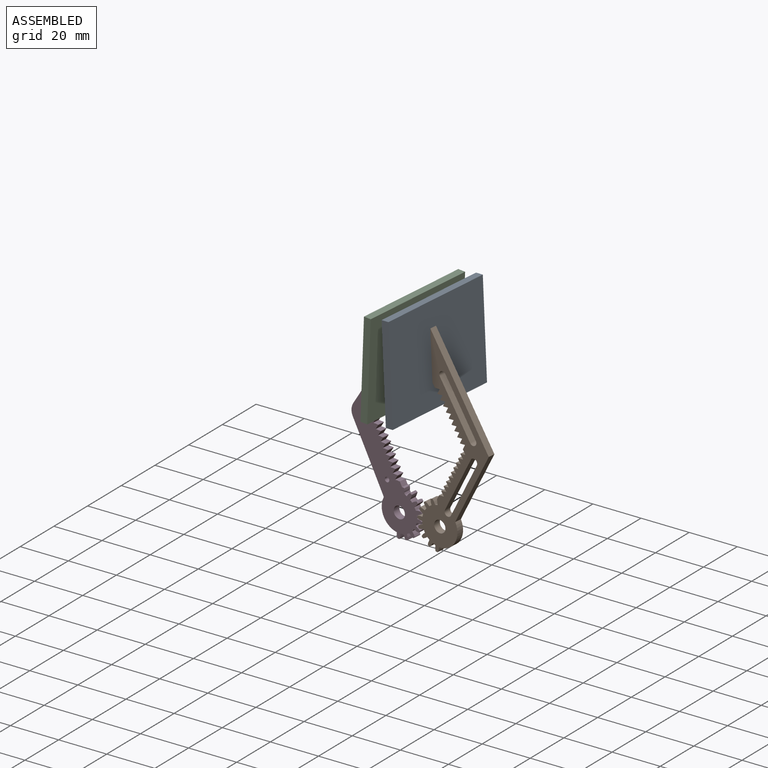
[diagram: assembled view]
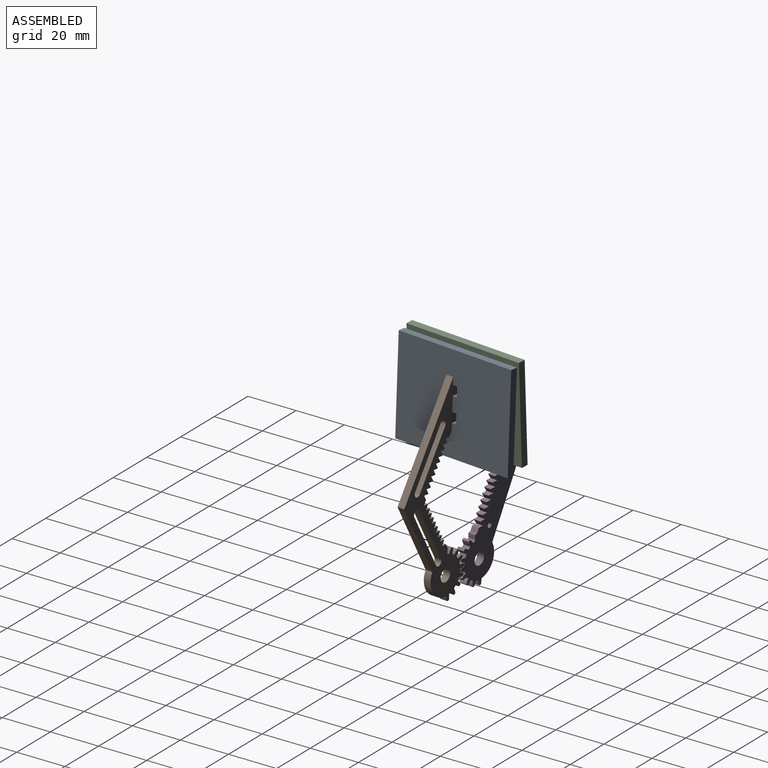
[diagram: assembled view, second angle]
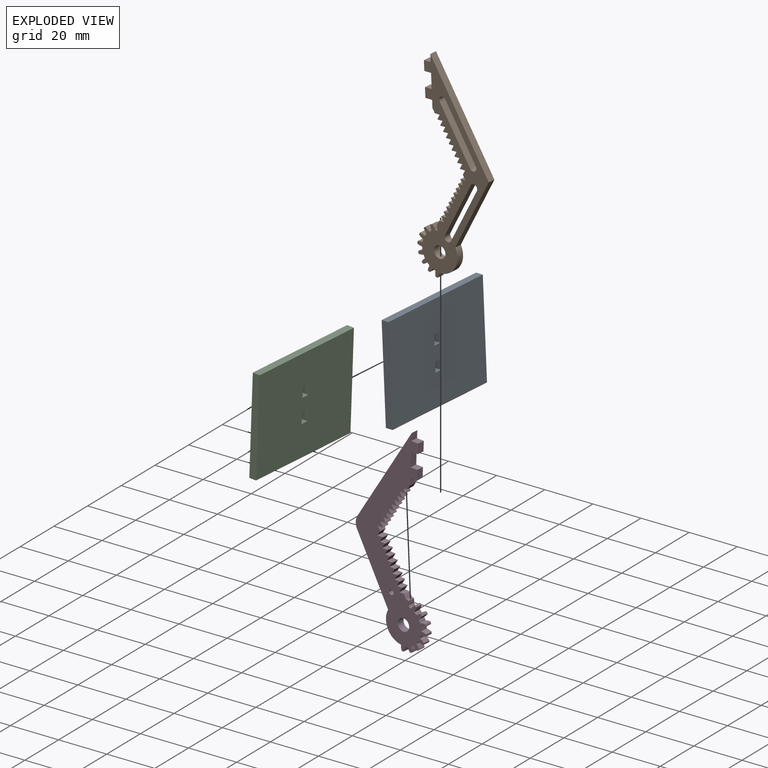
[diagram: exploded view]
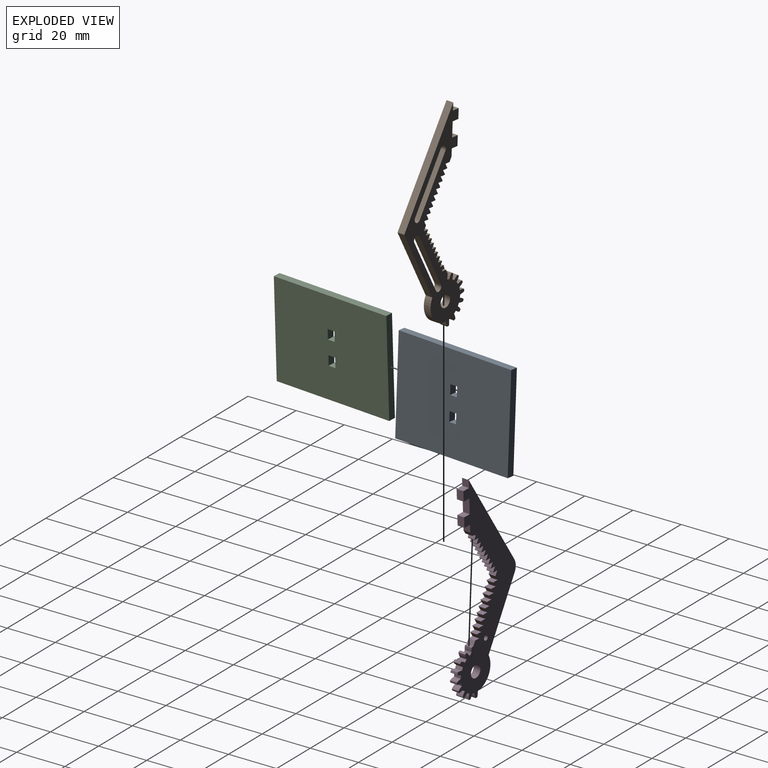
[diagram: exploded view, second angle]
ASSEMBLY  parts=4 mates=5
PART A: 14 faces, bbox 40x3x50 mm
  f0: plane 50x3mm, normal (1,0,0), area 150mm2, adj f1,f11,f12,f13
  f1: plane 40x3mm, normal (0,0,1), area 120mm2, adj f0,f2,f12,f13
  f2: plane 50x3mm, normal (-1,0,0), area 150mm2, adj f1,f11,f12,f13
  f3: plane 4x3mm, normal (0,0,-1), area 12mm2, adj f4,f9,f12,f13
  f4: plane 3x3mm, normal (-1,0,0), area 9mm2, adj f3,f5,f12,f13
  f5: plane 4x3mm, normal (0,0,1), area 12mm2, adj f4,f9,f12,f13
  f6: plane 3x3mm, normal (-1,0,0), area 9mm2, adj f7,f10,f12,f13
  f7: plane 4x3mm, normal (0,0,1), area 12mm2, adj f6,f8,f12,f13
  f8: plane 3x3mm, normal (1,0,0), area 9mm2, adj f7,f10,f12,f13
  f9: plane 3x3mm, normal (1,0,0), area 9mm2, adj f3,f5,f12,f13
  f10: plane 4x3mm, normal (0,0,-1), area 12mm2, adj f6,f8,f12,f13
  f11: plane 40x3mm, normal (0,0,-1), area 120mm2, adj f0,f2,f12,f13
  f12: plane 50x40mm, normal (0,-1,0), area 1976mm2, adj f0,f1,f2,f3,f4,f5,f6,f7
  f13: plane 50x40mm, normal (0,1,0), area 1976mm2, adj f0,f1,f2,f3,f4,f5,f6,f7
PART B: 164 faces, bbox 33.2x3x83.1 mm
  f0: plane 21.65x12.5mm, normal (-0.87,0,0.5), area 75mm2, adj f1,f161,f162,f163
  f1: cylinder r=1.5mm len=3mm, axis (0,1,0), area 14.1mm2, adj f0,f2,f162,f163
  f2: plane 21.65x12.5mm, normal (0.87,0,-0.5), area 75mm2, adj f1,f161,f162,f163
  f3: plane 3x2.13mm, normal (0,0,1), area 6.4mm2, adj f4,f158,f162,f163
  f4: plane 3x0.16mm, normal (-0.87,0,0.5), area 0.6mm2, adj f3,f5,f162,f163
  f5: plane 3x1.85mm, normal (-0.87,0,-0.5), area 6.4mm2, adj f4,f6,f162,f163
  f6: plane 3x2.13mm, normal (0,0,1), area 6.4mm2, adj f5,f7,f162,f163
  f7: plane 3x1.73mm, normal (-0.87,0,0.5), area 6mm2, adj f6,f8,f162,f163
  f8: plane 3x2.16mm, normal (-1,0,-0.07), area 6.5mm2, adj f7,f9,f162,f163
  f9: cylinder r=7.83mm len=3mm, axis (0,1,0), area 3.3mm2, adj f8,f10,f162,f163
  f10: plane 3x1.07mm, normal (0.91,0,0.41), area 3.5mm2, adj f9,f11,f162,f163
  f11: plane 3x0.03mm, normal (0.87,0,0.48), area 0.1mm2, adj f10,f12,f162,f163
  f12: plane 3x0.74mm, normal (0.83,0,0.56), area 2.7mm2, adj f11,f13,f162,f163
  f13: cylinder r=0.2mm len=3mm, axis (0,1,0), area 0.8mm2, adj f12,f14,f162,f163
  f14: cylinder r=10mm len=3mm, axis (0,1,0), area 2mm2, adj f13,f15,f162,f163
  f15: cylinder r=0.2mm len=3mm, axis (0,1,0), area 0.8mm2, adj f14,f16,f162,f163
  f16: plane 3x0.89mm, normal (-1,0,-0.07), area 2.7mm2, adj f15,f17,f162,f163
  f17: plane 3x0.03mm, normal (-0.99,0,-0.16), area 0.1mm2, adj f16,f18,f162,f163
  f18: plane 3x1.13mm, normal (-0.97,0,-0.24), area 3.5mm2, adj f17,f19,f162,f163
  f19: cylinder r=7.83mm len=3mm, axis (0,1,0), area 3.7mm2, adj f18,f20,f162,f163
  f20: plane 3x0.83mm, normal (0.7,0,0.71), area 3.5mm2, adj f19,f21,f162,f163
  f21: plane 3x0.03mm, normal (0.64,0,0.77), area 0.1mm2, adj f20,f22,f162,f163
  f22: plane 3x0.73mm, normal (0.57,0,0.82), area 2.7mm2, adj f21,f23,f162,f163
  f23: cylinder r=0.2mm len=3mm, axis (0,1,0), area 0.8mm2, adj f22,f24,f162,f163
  f24: cylinder r=10mm len=3mm, axis (0,1,0), area 2mm2, adj f23,f25,f162,f163
  f25: cylinder r=0.2mm len=3mm, axis (0,1,0), area 0.8mm2, adj f24,f26,f162,f163
  f26: plane 3x0.81mm, normal (-0.9,0,-0.43), area 2.7mm2, adj f25,f27,f162,f163
  f27: plane 3x0.03mm, normal (-0.86,0,-0.51), area 0.1mm2, adj f26,f28,f162,f163
  f28: plane 3x0.95mm, normal (-0.81,0,-0.58), area 3.5mm2, adj f27,f29,f162,f163
  f29: cylinder r=7.83mm len=3mm, axis (0,1,0), area 3.7mm2, adj f28,f30,f162,f163
  f30: plane 3x1.08mm, normal (0.39,0,0.92), area 3.5mm2, adj f29,f31,f162,f163
  f31: plane 3x0.03mm, normal (0.31,0,0.95), area 0.1mm2, adj f30,f32,f162,f163
  f32: plane 3x0.87mm, normal (0.23,0,0.97), area 2.7mm2, adj f31,f33,f162,f163
  f33: cylinder r=0.2mm len=3mm, axis (0,1,0), area 0.8mm2, adj f32,f34,f162,f163
  f34: cylinder r=10mm len=3mm, axis (0,1,0), area 2mm2, adj f33,f35,f162,f163
  f35: cylinder r=0.2mm len=3mm, axis (0,1,0), area 0.8mm2, adj f34,f36,f162,f163
  f36: plane 3x0.65mm, normal (-0.68,0,-0.73), area 2.7mm2, adj f35,f37,f162,f163
  f37: plane 3x0.03mm, normal (-0.62,0,-0.79), area 0.1mm2, adj f36,f38,f162,f163
  f38: plane 3x0.98mm, normal (-0.55,0,-0.84), area 3.5mm2, adj f37,f39,f162,f163
  f39: cylinder r=7.83mm len=3mm, axis (0,1,0), area 3.7mm2, adj f38,f40,f162,f163
  f40: plane 3x1.17mm, normal (0.03,0,1), area 3.5mm2, adj f39,f41,f162,f163
  f41: plane 3x0.04mm, normal (-0.06,0,1), area 0.1mm2, adj f40,f42,f162,f163
  f42: plane 3x0.88mm, normal (-0.14,0,0.99), area 2.7mm2, adj f41,f43,f162,f163
  f43: cylinder r=0.2mm len=3mm, axis (0,1,0), area 0.8mm2, adj f42,f44,f162,f163
  f44: cylinder r=10mm len=3mm, axis (0,1,0), area 2mm2, adj f43,f45,f162,f163
  f45: cylinder r=0.2mm len=3mm, axis (0,1,0), area 0.8mm2, adj f44,f46,f162,f163
  f46: plane 3x0.83mm, normal (-0.37,0,-0.93), area 2.7mm2, adj f45,f47,f162,f163
  f47: plane 3x0.03mm, normal (-0.29,0,-0.96), area 0.1mm2, adj f46,f48,f162,f163
  f48: plane 3x1.15mm, normal (-0.2,0,-0.98), area 3.5mm2, adj f47,f49,f162,f163
  f49: cylinder r=7.83mm len=3mm, axis (0,1,0), area 3.7mm2, adj f48,f50,f162,f163
  f50: plane 3x1.1mm, normal (-0.34,0,0.94), area 3.5mm2, adj f49,f51,f162,f163
  f51: plane 3x0.03mm, normal (-0.42,0,0.91), area 0.1mm2, adj f50,f52,f162,f163
  f52: plane 3x0.77mm, normal (-0.5,0,0.87), area 2.7mm2, adj f51,f53,f162,f163
  f53: cylinder r=0.2mm len=3mm, axis (0,1,0), area 0.8mm2, adj f52,f54,f162,f163
  f54: cylinder r=10mm len=3mm, axis (0,1,0), area 2mm2, adj f53,f55,f162,f163
  f55: cylinder r=0.2mm len=3mm, axis (0,1,0), area 0.8mm2, adj f54,f56,f162,f163
  f56: plane 3x0.89mm, normal (0,0,-1), area 2.7mm2, adj f55,f57,f162,f163
  f57: plane 3x0.03mm, normal (0.08,0,-1), area 0.1mm2, adj f56,f58,f162,f163
  f58: plane 3x1.15mm, normal (0.17,0,-0.99), area 3.5mm2, adj f57,f59,f162,f163
  f59: cylinder r=7.83mm len=3mm, axis (0,1,0), area 3.7mm2, adj f58,f60,f162,f163
  f60: plane 3x0.88mm, normal (-0.66,0,0.75), area 3.5mm2, adj f59,f61,f162,f163
  f61: plane 3x0.03mm, normal (-0.72,0,0.69), area 0.1mm2, adj f60,f62,f162,f163
  f62: plane 3x0.69mm, normal (-0.78,0,0.63), area 2.7mm2, adj f61,f63,f162,f163
  f63: cylinder r=0.2mm len=3mm, axis (0,1,0), area 0.8mm2, adj f62,f64,f162,f163
  f64: cylinder r=10mm len=3mm, axis (0,1,0), area 2mm2, adj f63,f65,f162,f163
  f65: cylinder r=0.2mm len=3mm, axis (0,1,0), area 0.8mm2, adj f64,f66,f162,f163
  f66: plane 3x0.83mm, normal (0.36,0,-0.93), area 2.7mm2, adj f65,f67,f162,f163
  f67: plane 3x0.03mm, normal (0.44,0,-0.9), area 0.1mm2, adj f66,f68,f162,f163
  f68: plane 3x1mm, normal (0.52,0,-0.86), area 3.5mm2, adj f67,f69,f162,f163
  f69: cylinder r=7.83mm len=3mm, axis (0,1,0), area 3.7mm2, adj f68,f70,f162,f163
  f70: plane 3x1.04mm, normal (-0.89,0,0.46), area 3.5mm2, adj f69,f71,f162,f163
  f71: plane 3x0.03mm, normal (-0.92,0,0.38), area 0.1mm2, adj f70,f72,f162,f163
  f72: plane 3x0.85mm, normal (-0.95,0,0.3), area 2.7mm2, adj f71,f73,f162,f163
  f73: cylinder r=0.2mm len=3mm, axis (0,1,0), area 0.8mm2, adj f72,f74,f162,f163
  f74: cylinder r=10mm len=3mm, axis (0,1,0), area 2mm2, adj f73,f75,f162,f163
  f75: cylinder r=0.2mm len=3mm, axis (0,1,0), area 0.8mm2, adj f74,f76,f162,f163
  f76: plane 3x0.66mm, normal (0.68,0,-0.74), area 2.7mm2, adj f75,f77,f162,f163
  f77: plane 3x0.03mm, normal (0.74,0,-0.67), area 0.1mm2, adj f76,f78,f162,f163
  f78: plane 3x0.93mm, normal (0.79,0,-0.61), area 3.5mm2, adj f77,f79,f162,f163
  f79: cylinder r=7.83mm len=3mm, axis (0,1,0), area 3.7mm2, adj f78,f80,f162,f163
  f80: plane 3x1.16mm, normal (-0.99,0,0.1), area 3.5mm2, adj f79,f81,f162,f163
  f81: cylinder r=0.2mm len=3mm, axis (0,1,0), area 0.1mm2, adj f80,f82,f162,f163
  f82: plane 3x0.89mm, normal (-1,0,-0.07), area 2.7mm2, adj f81,f83,f162,f163
  f83: cylinder r=0.2mm len=3mm, axis (0,1,0), area 0.8mm2, adj f82,f84,f162,f163
  f84: cylinder r=10mm len=3mm, axis (0,1,0), area 2mm2, adj f83,f85,f162,f163
  f85: cylinder r=0.2mm len=3mm, axis (0,1,0), area 0.8mm2, adj f84,f86,f162,f163
  f86: plane 3x0.8mm, normal (0.9,0,-0.44), area 2.7mm2, adj f85,f87,f162,f163
  f87: cylinder r=0.2mm len=3mm, axis (0,1,0), area 0.1mm2, adj f86,f88,f162,f163
  f88: plane 3x1.12mm, normal (0.96,0,-0.28), area 3.5mm2, adj f87,f89,f162,f163
  f89: cylinder r=7.83mm len=11.32mm, axis (0,1,0), area 49.7mm2, adj f88,f90,f162,f163
  f90: plane 28.13x16.24mm, normal (0.87,0,-0.5), area 97.5mm2, adj f89,f91,f162,f163
  f91: plane 41.65x24.05mm, normal (0.87,0,0.5), area 144.3mm2, adj f90,f92,f162,f163
  f92: plane 3x3mm, normal (-1,0,0), area 9mm2, adj f91,f93,f162,f163
  f93: plane 3x3mm, normal (0,0,1), area 9mm2, adj f92,f94,f162,f163
  f94: plane 4x3mm, normal (-1,0,0), area 12mm2, adj f93,f95,f162,f163
  f95: plane 3x3mm, normal (0,0,-1), area 9mm2, adj f94,f96,f162,f163
  f96: plane 6x3mm, normal (-1,0,0), area 18mm2, adj f95,f97,f162,f163
  f97: plane 3x3mm, normal (0,0,1), area 9mm2, adj f96,f98,f162,f163
  f98: plane 4x3mm, normal (-1,0,0), area 12mm2, adj f97,f99,f162,f163
  f99: plane 3x3mm, normal (0,0,-1), area 9mm2, adj f98,f100,f162,f163
  f100: plane 3x3mm, normal (-1,0,0), area 9mm2, adj f99,f101,f162,f163
  f101: plane 3x1.73mm, normal (-0.87,0,-0.5), area 6mm2, adj f100,f102,f162,f163
  f102: plane 3x2.13mm, normal (0,0,-1), area 6.4mm2, adj f101,f103,f162,f163
  f103: plane 3x1.85mm, normal (-0.87,0,0.5), area 6.4mm2, adj f102,f104,f162,f163
  f104: plane 3x0.16mm, normal (-0.87,0,-0.5), area 0.6mm2, adj f103,f105,f162,f163
  f105: plane 3x2.13mm, normal (0,0,-1), area 6.4mm2, adj f104,f106,f162,f163
  f106: plane 3x1.85mm, normal (-0.87,0,0.5), area 6.4mm2, adj f105,f107,f162,f163
  f107: plane 3x0.16mm, normal (-0.87,0,-0.5), area 0.6mm2, adj f106,f108,f162,f163
  f108: plane 3x2.13mm, normal (0,0,-1), area 6.4mm2, adj f107,f109,f162,f163
  f109: plane 3x1.85mm, normal (-0.87,0,0.5), area 6.4mm2, adj f108,f110,f162,f163
  f110: plane 3x0.16mm, normal (-0.87,0,-0.5), area 0.6mm2, adj f109,f111,f162,f163
  f111: plane 3x2.13mm, normal (0,0,-1), area 6.4mm2, adj f110,f112,f162,f163
  f112: plane 3x1.85mm, normal (-0.87,0,0.5), area 6.4mm2, adj f111,f113,f162,f163
  f113: plane 3x0.16mm, normal (-0.87,0,-0.5), area 0.6mm2, adj f112,f114,f162,f163
  f114: plane 3x2.13mm, normal (0,0,-1), area 6.4mm2, adj f113,f115,f162,f163
  f115: plane 3x1.85mm, normal (-0.87,0,0.5), area 6.4mm2, adj f114,f116,f162,f163
  f116: plane 3x0.16mm, normal (-0.87,0,-0.5), area 0.6mm2, adj f115,f117,f162,f163
  f117: plane 3x2.13mm, normal (0,0,-1), area 6.4mm2, adj f116,f118,f162,f163
  f118: plane 3x1.85mm, normal (-0.87,0,0.5), area 6.4mm2, adj f117,f119,f162,f163
  f119: plane 3x0.16mm, normal (-0.87,0,-0.5), area 0.6mm2, adj f118,f120,f162,f163
  f120: plane 3x2.13mm, normal (0,0,-1), area 6.4mm2, adj f119,f121,f162,f163
  f121: plane 3x1.85mm, normal (-0.87,0,0.5), area 6.4mm2, adj f120,f122,f162,f163
  f122: plane 3x0.16mm, normal (-0.87,0,-0.5), area 0.6mm2, adj f121,f123,f162,f163
  f123: plane 3x2.13mm, normal (0,0,-1), area 6.4mm2, adj f122,f124,f162,f163
  f124: plane 3x1.85mm, normal (-0.87,0,0.5), area 6.4mm2, adj f123,f125,f162,f163
  f125: plane 3x0.16mm, normal (-0.87,0,-0.5), area 0.6mm2, adj f124,f126,f162,f163
  f126: plane 3x2.13mm, normal (0,0,-1), area 6.4mm2, adj f125,f127,f162,f163
  f127: plane 3x1.85mm, normal (-0.87,0,0.5), area 6.4mm2, adj f126,f128,f162,f163
  f128: plane 3x0.16mm, normal (-0.87,0,-0.5), area 0.6mm2, adj f127,f129,f162,f163
  f129: plane 3x2.13mm, normal (0,0,-1), area 6.4mm2, adj f128,f130,f162,f163
  f130: plane 3x1.85mm, normal (-0.87,0,0.5), area 6.4mm2, adj f129,f131,f162,f163
  f131: plane 3x1.85mm, normal (-0.87,0,-0.5), area 6.4mm2, adj f130,f132,f162,f163
  f132: plane 3x2.13mm, normal (0,0,1), area 6.4mm2, adj f131,f133,f162,f163
  f133: plane 3x0.16mm, normal (-0.87,0,0.5), area 0.6mm2, adj f132,f134,f162,f163
  f134: plane 3x1.85mm, normal (-0.87,0,-0.5), area 6.4mm2, adj f133,f135,f162,f163
  f135: plane 3x2.13mm, normal (0,0,1), area 6.4mm2, adj f134,f136,f162,f163
  f136: plane 3x0.16mm, normal (-0.87,0,0.5), area 0.6mm2, adj f135,f137,f162,f163
  f137: plane 3x1.85mm, normal (-0.87,0,-0.5), area 6.4mm2, adj f136,f138,f162,f163
  f138: plane 3x2.13mm, normal (0,0,1), area 6.4mm2, adj f137,f139,f162,f163
  f139: plane 3x0.16mm, normal (-0.87,0,0.5), area 0.6mm2, adj f138,f140,f162,f163
  f140: plane 3x1.85mm, normal (-0.87,0,-0.5), area 6.4mm2, adj f139,f141,f162,f163
  f141: plane 3x2.13mm, normal (0,0,1), area 6.4mm2, adj f140,f142,f162,f163
  f142: plane 3x0.16mm, normal (-0.87,0,0.5), area 0.6mm2, adj f141,f143,f162,f163
  f143: plane 3x1.85mm, normal (-0.87,0,-0.5), area 6.4mm2, adj f142,f144,f162,f163
  f144: plane 3x2.13mm, normal (0,0,1), area 6.4mm2, adj f143,f145,f162,f163
  f145: plane 3x0.16mm, normal (-0.87,0,0.5), area 0.6mm2, adj f144,f146,f162,f163
  f146: plane 3x1.85mm, normal (-0.87,0,-0.5), area 6.4mm2, adj f145,f147,f162,f163
  f147: plane 3x2.13mm, normal (0,0,1), area 6.4mm2, adj f146,f148,f162,f163
  f148: plane 3x0.16mm, normal (-0.87,0,0.5), area 0.6mm2, adj f147,f149,f162,f163
  f149: plane 3x1.85mm, normal (-0.87,0,-0.5), area 6.4mm2, adj f148,f150,f162,f163
  f150: plane 3x2.13mm, normal (0,0,1), area 6.4mm2, adj f149,f151,f162,f163
  f151: plane 3x0.16mm, normal (-0.87,0,0.5), area 0.6mm2, adj f150,f152,f162,f163
  f152: plane 3x1.85mm, normal (-0.87,0,-0.5), area 6.4mm2, adj f151,f153,f162,f163
  f153: plane 3x2.13mm, normal (0,0,1), area 6.4mm2, adj f152,f154,f162,f163
  f154: plane 3x0.16mm, normal (-0.87,0,0.5), area 0.6mm2, adj f153,f158,f162,f163
  f155: plane 21.65x12.5mm, normal (0.87,0,0.5), area 75mm2, adj f156,f159,f162,f163
  f156: cylinder r=1.5mm len=3mm, axis (0,1,0), area 14.1mm2, adj f155,f157,f162,f163
  f157: plane 21.65x12.5mm, normal (-0.87,0,-0.5), area 75mm2, adj f156,f159,f162,f163
  f158: plane 3x1.85mm, normal (-0.87,0,-0.5), area 6.4mm2, adj f3,f154,f162,f163
  f159: cylinder r=1.5mm len=3mm, axis (0,1,0), area 14.1mm2, adj f155,f157,f162,f163
  f160: cylinder r=2.5mm len=5mm, axis (0,1,0), area 47.1mm2, adj f162,f163
  f161: cylinder r=1.5mm len=3mm, axis (0,1,0), area 14.1mm2, adj f0,f2,f162,f163
  f162: plane 83.15x33.22mm, normal (0,-1,0), area 671.1mm2, adj f0,f1,f2,f3,f4,f5,f6,f7
  f163: plane 83.15x33.22mm, normal (0,1,0), area 671.1mm2, adj f0,f1,f2,f3,f4,f5,f6,f7
PART C: same geometry as A
PART D: 166 faces, bbox 32.5x3x83.3 mm
  f0: plane 3x0.64mm, normal (-1,0,-0.04), area 1.9mm2, adj f1,f159,f160,f161
  f1: plane 3x0.63mm, normal (-0.87,0,0.5), area 2.2mm2, adj f0,f2,f160,f161
  f2: cylinder r=7.83mm len=3mm, axis (0,1,0), area 2.5mm2, adj f1,f3,f160,f161
  f3: plane 3x0.97mm, normal (0.83,0,0.56), area 3.5mm2, adj f2,f4,f160,f161
  f4: cylinder r=0.2mm len=3mm, axis (0,1,0), area 0.1mm2, adj f3,f5,f160,f161
  f5: plane 3x0.64mm, normal (0.72,0,0.69), area 2.7mm2, adj f4,f6,f160,f161
  f6: cylinder r=0.2mm len=3mm, axis (0,1,0), area 0.8mm2, adj f5,f7,f160,f161
  f7: cylinder r=10mm len=3mm, axis (0,1,0), area 2mm2, adj f6,f8,f160,f161
  f8: cylinder r=0.2mm len=3mm, axis (0,1,0), area 0.8mm2, adj f7,f9,f160,f161
  f9: plane 3x0.86mm, normal (-0.97,0,-0.24), area 2.7mm2, adj f8,f10,f160,f161
  f10: cylinder r=0.2mm len=3mm, axis (0,1,0), area 0.1mm2, adj f9,f11,f160,f161
  f11: plane 3x1.07mm, normal (-0.91,0,-0.41), area 3.5mm2, adj f10,f12,f160,f161
  f12: cylinder r=7.83mm len=3mm, axis (0,1,0), area 3.7mm2, adj f11,f13,f160,f161
  f13: plane 3x0.96mm, normal (0.57,0,0.82), area 3.5mm2, adj f12,f14,f160,f161
  f14: cylinder r=0.2mm len=3mm, axis (0,1,0), area 0.1mm2, adj f13,f15,f160,f161
  f15: plane 3x0.81mm, normal (0.41,0,0.91), area 2.7mm2, adj f14,f16,f160,f161
  f16: cylinder r=0.2mm len=3mm, axis (0,1,0), area 0.8mm2, adj f15,f17,f160,f161
  f17: cylinder r=10mm len=3mm, axis (0,1,0), area 2mm2, adj f16,f18,f160,f161
  f18: cylinder r=0.2mm len=3mm, axis (0,1,0), area 0.8mm2, adj f17,f19,f160,f161
  f19: plane 3x0.73mm, normal (-0.81,0,-0.58), area 2.7mm2, adj f18,f20,f160,f161
  f20: cylinder r=0.2mm len=3mm, axis (0,1,0), area 0.1mm2, adj f19,f21,f160,f161
  f21: plane 3x0.84mm, normal (-0.7,0,-0.71), area 3.5mm2, adj f20,f22,f160,f161
  f22: cylinder r=7.83mm len=3mm, axis (0,1,0), area 3.7mm2, adj f21,f23,f160,f161
  f23: plane 3x1.14mm, normal (0.22,0,0.97), area 3.5mm2, adj f22,f24,f160,f161
  f24: cylinder r=0.2mm len=3mm, axis (0,1,0), area 0.1mm2, adj f23,f25,f160,f161
  f25: plane 3x0.89mm, normal (0.05,0,1), area 2.7mm2, adj f24,f26,f160,f161
  f26: cylinder r=0.2mm len=3mm, axis (0,1,0), area 0.8mm2, adj f25,f27,f160,f161
  f27: cylinder r=10mm len=3mm, axis (0,1,0), area 2mm2, adj f26,f28,f160,f161
  f28: cylinder r=0.2mm len=3mm, axis (0,1,0), area 0.8mm2, adj f27,f29,f160,f161
  f29: plane 3x0.75mm, normal (-0.54,0,-0.84), area 2.7mm2, adj f28,f30,f160,f161
  f30: cylinder r=0.2mm len=3mm, axis (0,1,0), area 0.1mm2, adj f29,f31,f160,f161
  f31: plane 3x1.08mm, normal (-0.39,0,-0.92), area 3.5mm2, adj f30,f32,f160,f161
  f32: cylinder r=7.83mm len=3mm, axis (0,1,0), area 3.7mm2, adj f31,f33,f160,f161
  f33: plane 3x1.16mm, normal (-0.15,0,0.99), area 3.5mm2, adj f32,f34,f160,f161
  f34: cylinder r=0.2mm len=3mm, axis (0,1,0), area 0.1mm2, adj f33,f35,f160,f161
  f35: plane 3x0.84mm, normal (-0.32,0,0.95), area 2.7mm2, adj f34,f36,f160,f161
  f36: cylinder r=0.2mm len=3mm, axis (0,1,0), area 0.8mm2, adj f35,f37,f160,f161
  f37: cylinder r=10mm len=3mm, axis (0,1,0), area 2mm2, adj f36,f38,f160,f161
  f38: cylinder r=0.2mm len=3mm, axis (0,1,0), area 0.8mm2, adj f37,f39,f160,f161
  f39: plane 3x0.87mm, normal (-0.2,0,-0.98), area 2.7mm2, adj f38,f40,f160,f161
  f40: cylinder r=0.2mm len=3mm, axis (0,1,0), area 0.1mm2, adj f39,f41,f160,f161
  f41: plane 3x1.17mm, normal (-0.02,0,-1), area 3.5mm2, adj f40,f42,f160,f161
  f42: cylinder r=7.83mm len=3mm, axis (0,1,0), area 3.7mm2, adj f41,f43,f160,f161
  f43: plane 3x1.01mm, normal (-0.5,0,0.86), area 3.5mm2, adj f42,f44,f160,f161
  f44: cylinder r=0.2mm len=3mm, axis (0,1,0), area 0.1mm2, adj f43,f45,f160,f161
  f45: plane 3x0.68mm, normal (-0.65,0,0.76), area 2.7mm2, adj f44,f46,f160,f161
  f46: cylinder r=0.2mm len=3mm, axis (0,1,0), area 0.8mm2, adj f45,f47,f160,f161
  f47: cylinder r=10mm len=3mm, axis (0,1,0), area 2mm2, adj f46,f48,f160,f161
  f48: cylinder r=0.2mm len=3mm, axis (0,1,0), area 0.8mm2, adj f47,f49,f160,f161
  f49: plane 3x0.88mm, normal (0.18,0,-0.98), area 2.7mm2, adj f48,f50,f160,f161
  f50: cylinder r=0.2mm len=3mm, axis (0,1,0), area 0.1mm2, adj f49,f51,f160,f161
  f51: plane 3x1.1mm, normal (0.35,0,-0.94), area 3.5mm2, adj f50,f52,f160,f161
  f52: cylinder r=7.83mm len=3mm, axis (0,1,0), area 3.7mm2, adj f51,f53,f160,f161
  f53: plane 3x0.92mm, normal (-0.79,0,0.62), area 3.5mm2, adj f52,f54,f160,f161
  f54: cylinder r=0.2mm len=3mm, axis (0,1,0), area 0.1mm2, adj f53,f55,f160,f161
  f55: plane 3x0.79mm, normal (-0.88,0,0.47), area 2.7mm2, adj f54,f56,f160,f161
  f56: cylinder r=0.2mm len=3mm, axis (0,1,0), area 0.8mm2, adj f55,f57,f160,f161
  f57: cylinder r=10mm len=3mm, axis (0,1,0), area 2mm2, adj f56,f58,f160,f161
  f58: cylinder r=0.2mm len=3mm, axis (0,1,0), area 0.8mm2, adj f57,f59,f160,f161
  f59: plane 3x0.76mm, normal (0.53,0,-0.85), area 2.7mm2, adj f58,f60,f160,f161
  f60: cylinder r=0.2mm len=3mm, axis (0,1,0), area 0.1mm2, adj f59,f61,f160,f161
  f61: plane 3x0.87mm, normal (0.67,0,-0.74), area 3.5mm2, adj f60,f62,f160,f161
  f62: cylinder r=7.83mm len=3mm, axis (0,1,0), area 3.7mm2, adj f61,f63,f160,f161
  f63: plane 3x1.12mm, normal (-0.96,0,0.29), area 3.5mm2, adj f62,f64,f160,f161
  f64: cylinder r=0.2mm len=3mm, axis (0,1,0), area 0.1mm2, adj f63,f65,f160,f161
  f65: plane 3x0.89mm, normal (-0.99,0,0.11), area 2.7mm2, adj f64,f66,f160,f161
  f66: cylinder r=0.2mm len=3mm, axis (0,1,0), area 0.8mm2, adj f65,f67,f160,f161
  f67: cylinder r=10mm len=3mm, axis (0,1,0), area 2mm2, adj f66,f68,f160,f161
  f68: cylinder r=0.2mm len=3mm, axis (0,1,0), area 0.8mm2, adj f67,f69,f160,f161
  f69: plane 3x0.72mm, normal (0.8,0,-0.6), area 2.7mm2, adj f68,f70,f160,f161
  f70: cylinder r=0.2mm len=3mm, axis (0,1,0), area 0.1mm2, adj f69,f71,f160,f161
  f71: plane 3x1.05mm, normal (0.89,0,-0.45), area 3.5mm2, adj f70,f72,f160,f161
  f72: cylinder r=7.83mm len=3mm, axis (0,1,0), area 3.7mm2, adj f71,f73,f160,f161
  f73: plane 3x1.17mm, normal (-1,0,-0.09), area 3.5mm2, adj f72,f74,f160,f161
  f74: cylinder r=0.2mm len=3mm, axis (0,1,0), area 0.1mm2, adj f73,f75,f160,f161
  f75: plane 3x0.86mm, normal (-0.97,0,-0.26), area 2.7mm2, adj f74,f76,f160,f161
  f76: cylinder r=0.2mm len=3mm, axis (0,1,0), area 0.8mm2, adj f75,f77,f160,f161
  f77: cylinder r=10mm len=3mm, axis (0,1,0), area 2mm2, adj f76,f78,f160,f161
  f78: cylinder r=0.2mm len=3mm, axis (0,1,0), area 0.8mm2, adj f77,f79,f160,f161
  f79: plane 3x0.86mm, normal (0.97,0,-0.26), area 2.7mm2, adj f78,f80,f160,f161
  f80: cylinder r=0.2mm len=3mm, axis (0,1,0), area 0.1mm2, adj f79,f81,f160,f161
  f81: plane 3x1.17mm, normal (1,0,-0.09), area 3.5mm2, adj f80,f82,f160,f161
  f82: cylinder r=7.83mm len=11.27mm, axis (0,1,0), area 45.2mm2, adj f81,f83,f160,f161
  f83: plane 25.63x14.8mm, normal (0.87,0,-0.5), area 88.8mm2, adj f82,f160,f161,f162
  f84: plane 39.15x22.6mm, normal (0.87,0,0.5), area 135.6mm2, adj f85,f160,f161,f162
  f85: plane 3x3mm, normal (-1,0,0), area 9mm2, adj f84,f86,f160,f161
  f86: plane 3x3mm, normal (0,0,1), area 9mm2, adj f85,f87,f160,f161
  f87: plane 4x3mm, normal (-1,0,0), area 12mm2, adj f86,f88,f160,f161
  f88: plane 3x3mm, normal (0,0,-1), area 9mm2, adj f87,f89,f160,f161
  f89: plane 6x3mm, normal (-1,0,0), area 18mm2, adj f88,f90,f160,f161
  f90: plane 3x3mm, normal (0,0,1), area 9mm2, adj f89,f91,f160,f161
  f91: plane 4x3mm, normal (-1,0,0), area 12mm2, adj f90,f92,f160,f161
  f92: plane 3x3mm, normal (0,0,-1), area 9mm2, adj f91,f93,f160,f161
  f93: plane 3x3mm, normal (-1,0,0), area 9mm2, adj f92,f94,f160,f161
  f94: plane 3x1.48mm, normal (-0.87,0,-0.5), area 5.1mm2, adj f93,f160,f161,f165
  f95: plane 3x0.98mm, normal (0,0,-1), area 2.9mm2, adj f160,f161,f163,f165
  f96: plane 3x0.86mm, normal (-0.87,0,0.5), area 3mm2, adj f160,f161,f163,f164
  f97: plane 3x2.13mm, normal (0,0,-1), area 6.4mm2, adj f98,f160,f161,f164
  f98: plane 3x1.85mm, normal (-0.87,0,0.5), area 6.4mm2, adj f97,f99,f160,f161
  f99: plane 3x0.16mm, normal (-0.87,0,-0.5), area 0.6mm2, adj f98,f100,f160,f161
  f100: plane 3x2.13mm, normal (0,0,-1), area 6.4mm2, adj f99,f101,f160,f161
  f101: plane 3x1.85mm, normal (-0.87,0,0.5), area 6.4mm2, adj f100,f102,f160,f161
  f102: plane 3x0.16mm, normal (-0.87,0,-0.5), area 0.6mm2, adj f101,f103,f160,f161
  f103: plane 3x2.13mm, normal (0,0,-1), area 6.4mm2, adj f102,f104,f160,f161
  f104: plane 3x1.85mm, normal (-0.87,0,0.5), area 6.4mm2, adj f103,f105,f160,f161
  f105: plane 3x0.16mm, normal (-0.87,0,-0.5), area 0.6mm2, adj f104,f106,f160,f161
  f106: plane 3x2.13mm, normal (0,0,-1), area 6.4mm2, adj f105,f107,f160,f161
  f107: plane 3x1.85mm, normal (-0.87,0,0.5), area 6.4mm2, adj f106,f108,f160,f161
  f108: plane 3x0.16mm, normal (-0.87,0,-0.5), area 0.6mm2, adj f107,f109,f160,f161
  f109: plane 3x2.13mm, normal (0,0,-1), area 6.4mm2, adj f108,f110,f160,f161
  f110: plane 3x1.85mm, normal (-0.87,0,0.5), area 6.4mm2, adj f109,f111,f160,f161
  f111: plane 3x0.16mm, normal (-0.87,0,-0.5), area 0.6mm2, adj f110,f112,f160,f161
  f112: plane 3x2.13mm, normal (0,0,-1), area 6.4mm2, adj f111,f113,f160,f161
  f113: plane 3x1.85mm, normal (-0.87,0,0.5), area 6.4mm2, adj f112,f114,f160,f161
  f114: plane 3x0.16mm, normal (-0.87,0,-0.5), area 0.6mm2, adj f113,f115,f160,f161
  f115: plane 3x2.13mm, normal (0,0,-1), area 6.4mm2, adj f114,f116,f160,f161
  f116: plane 3x1.85mm, normal (-0.87,0,0.5), area 6.4mm2, adj f115,f117,f160,f161
  f117: plane 3x0.16mm, normal (-0.87,0,-0.5), area 0.6mm2, adj f116,f118,f160,f161
  f118: plane 3x2.13mm, normal (0,0,-1), area 6.4mm2, adj f117,f119,f160,f161
  f119: plane 3x1.85mm, normal (-0.87,0,0.5), area 6.4mm2, adj f118,f120,f160,f161
  f120: plane 3x0.16mm, normal (-0.87,0,-0.5), area 0.6mm2, adj f119,f121,f160,f161
  f121: plane 3x2.13mm, normal (0,0,-1), area 6.4mm2, adj f120,f122,f160,f161
  f122: plane 3x1.85mm, normal (-0.87,0,0.5), area 6.4mm2, adj f121,f123,f160,f161
  f123: plane 3x1.85mm, normal (-0.87,0,-0.5), area 6.4mm2, adj f122,f124,f160,f161
  f124: plane 3x2.13mm, normal (0,0,1), area 6.4mm2, adj f123,f125,f160,f161
  f125: plane 3x0.16mm, normal (-0.87,0,0.5), area 0.6mm2, adj f124,f126,f160,f161
  f126: plane 3x1.85mm, normal (-0.87,0,-0.5), area 6.4mm2, adj f125,f127,f160,f161
  f127: plane 3x2.13mm, normal (0,0,1), area 6.4mm2, adj f126,f128,f160,f161
  f128: plane 3x0.16mm, normal (-0.87,0,0.5), area 0.6mm2, adj f127,f129,f160,f161
  f129: plane 3x1.85mm, normal (-0.87,0,-0.5), area 6.4mm2, adj f128,f130,f160,f161
  f130: plane 3x2.13mm, normal (0,0,1), area 6.4mm2, adj f129,f131,f160,f161
  f131: plane 3x0.16mm, normal (-0.87,0,0.5), area 0.6mm2, adj f130,f132,f160,f161
  f132: plane 3x1.85mm, normal (-0.87,0,-0.5), area 6.4mm2, adj f131,f133,f160,f161
  f133: plane 3x2.13mm, normal (0,0,1), area 6.4mm2, adj f132,f134,f160,f161
  f134: plane 3x0.16mm, normal (-0.87,0,0.5), area 0.6mm2, adj f133,f135,f160,f161
  f135: plane 3x1.85mm, normal (-0.87,0,-0.5), area 6.4mm2, adj f134,f136,f160,f161
  f136: plane 3x2.13mm, normal (0,0,1), area 6.4mm2, adj f135,f137,f160,f161
  f137: plane 3x0.16mm, normal (-0.87,0,0.5), area 0.6mm2, adj f136,f138,f160,f161
  f138: plane 3x1.85mm, normal (-0.87,0,-0.5), area 6.4mm2, adj f137,f139,f160,f161
  f139: plane 3x2.13mm, normal (0,0,1), area 6.4mm2, adj f138,f140,f160,f161
  f140: plane 3x0.16mm, normal (-0.87,0,0.5), area 0.6mm2, adj f139,f141,f160,f161
  f141: plane 3x1.85mm, normal (-0.87,0,-0.5), area 6.4mm2, adj f140,f142,f160,f161
  f142: plane 3x2.13mm, normal (0,0,1), area 6.4mm2, adj f141,f143,f160,f161
  f143: plane 3x0.16mm, normal (-0.87,0,0.5), area 0.6mm2, adj f142,f144,f160,f161
  f144: plane 3x1.85mm, normal (-0.87,0,-0.5), area 6.4mm2, adj f143,f145,f160,f161
  f145: plane 3x2.13mm, normal (0,0,1), area 6.4mm2, adj f144,f146,f160,f161
  f146: plane 3x0.16mm, normal (-0.87,0,0.5), area 0.6mm2, adj f145,f147,f160,f161
  f147: plane 3x1.85mm, normal (-0.87,0,-0.5), area 6.4mm2, adj f146,f148,f160,f161
  f148: plane 3x2.13mm, normal (0,0,1), area 6.4mm2, adj f147,f149,f160,f161
  f149: plane 3x0.16mm, normal (-0.87,0,0.5), area 0.6mm2, adj f148,f150,f160,f161
  f150: plane 3x1.85mm, normal (-0.87,0,-0.5), area 6.4mm2, adj f149,f151,f160,f161
  f151: plane 3x2.13mm, normal (0,0,1), area 6.4mm2, adj f150,f152,f160,f161
  f152: plane 3x1.79mm, normal (-0.87,0,0.5), area 6.2mm2, adj f151,f153,f160,f161
  f153: cylinder r=0.2mm len=3mm, axis (0,1,0), area 0.5mm2, adj f152,f154,f160,f161
  f154: cylinder r=10mm len=3mm, axis (0,1,0), area 2mm2, adj f153,f155,f160,f161
  f155: cylinder r=0.2mm len=3mm, axis (0,1,0), area 0.8mm2, adj f154,f156,f160,f161
  f156: plane 3x0.88mm, normal (-0.99,0,0.13), area 2.7mm2, adj f155,f159,f160,f161
  f157: cylinder r=2.5mm len=5mm, axis (0,1,0), area 47.1mm2, adj f160,f161
  f158: cylinder r=1mm len=3mm, axis (0,1,0), area 18.8mm2, adj f160,f161
  f159: cylinder r=0.2mm len=3mm, axis (0,1,0), area 0.1mm2, adj f0,f156,f160,f161
  f160: plane 83.27x32.48mm, normal (0,-1,0), area 833.5mm2, adj f0,f1,f2,f3,f4,f5,f6,f7
  f161: plane 83.27x32.48mm, normal (0,1,0), area 833.5mm2, adj f0,f1,f2,f3,f4,f5,f6,f7
  f162: cylinder r=5mm len=5mm, axis (0,1,0), area 15.7mm2, adj f83,f84,f160,f161
  f163: cylinder r=0.5mm len=3mm, axis (0,-1,0), area 3.1mm2, adj f95,f96,f160,f161
  f164: cylinder r=0.5mm len=3mm, axis (0,1,0), area 1.2mm2, adj f96,f97,f160,f161
  f165: cylinder r=0.5mm len=3mm, axis (0,-1,0), area 1.6mm2, adj f94,f95,f160,f161
PLACE A rot(axis=(0.54,-0.62,0.57),118.7deg) t=(27.33,-35.14,-14.51)mm
PLACE B rot(axis=(-0.02,-0.47,-0.88),5.7deg) t=(56.57,-38.05,-123.73)mm
PLACE C rot(axis=(0.58,-0.6,0.55),115.9deg) t=(19.18,-36.29,-14.41)mm
PLACE D rot(axis=(0.02,0,1),175deg) t=(35.25,-39.2,-46.72)mm
MATE planar C.f12 <-> D.f91  axis (1,-0.09,-0.04) through (19.99,-61.45,-14.53)mm
MATE planar A.f8 <-> B.f99  axis (-0.05,0,1) through (29.15,-35.3,-21.43)mm
MATE planar A.f13 <-> B.f94  axis (-1,0.09,-0.05) through (27.33,-35.14,-14.51)mm
MATE planar C.f3 <-> D.f161  axis (0.09,1,0) through (20.73,-37.93,-9.47)mm
MATE planar C.f9 <-> D.f88  axis (0.04,0,1) through (20.79,-36.43,-11.47)mm
